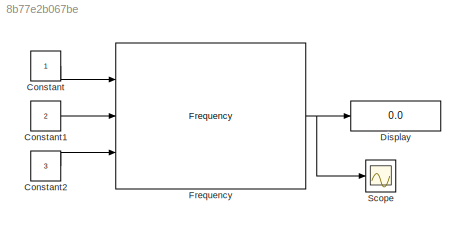
MODEL slx_8b77e2b067be
KIND model
BLOCK [Constant] Constant
BLOCK [Constant] Constant1
  Value = 2
BLOCK [Constant] Constant2
  Value = 3
BLOCK [Display] Display
  Decimation = 1
  Ports = [1]
BLOCK [Reference] Frequency  REF=rocket_angular_flight_library/Frequency
  Ports = [3, 1]
  SourceBlock = rocket_angular_flight_library/Frequency
  SourceType = SubSystem
BLOCK [Scope] Scope
  DataFormat = StructureWithTime
  Floating = off
  NumInputPorts = 1
  Ports = [1]
  SampleTime = 0
  ShowLegends = off
LINE Constant1:1 -> Frequency:2
LINE Constant2:1 -> Frequency:3
LINE Constant:1 -> Frequency:1
NET Frequency:1 -> Display:1, Scope:1
note: NET lines group one-source signal fan-out (src -> all destinations, sorted); 1:1 wires keep LINE
